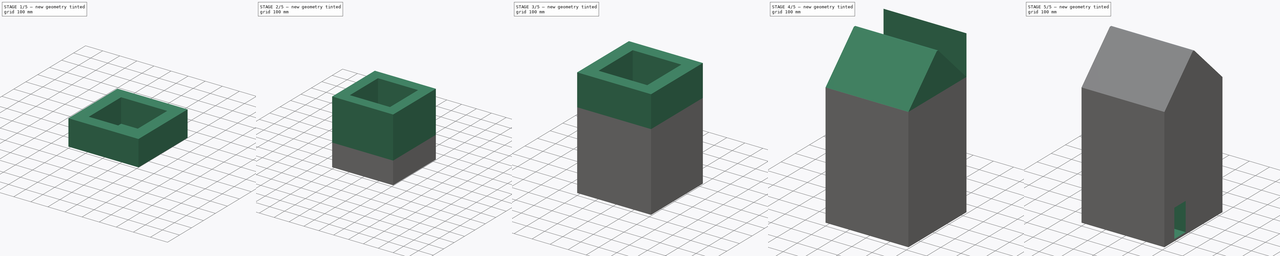
[diagram: build sequence overview — one tinted view per stage of 5, left to right]
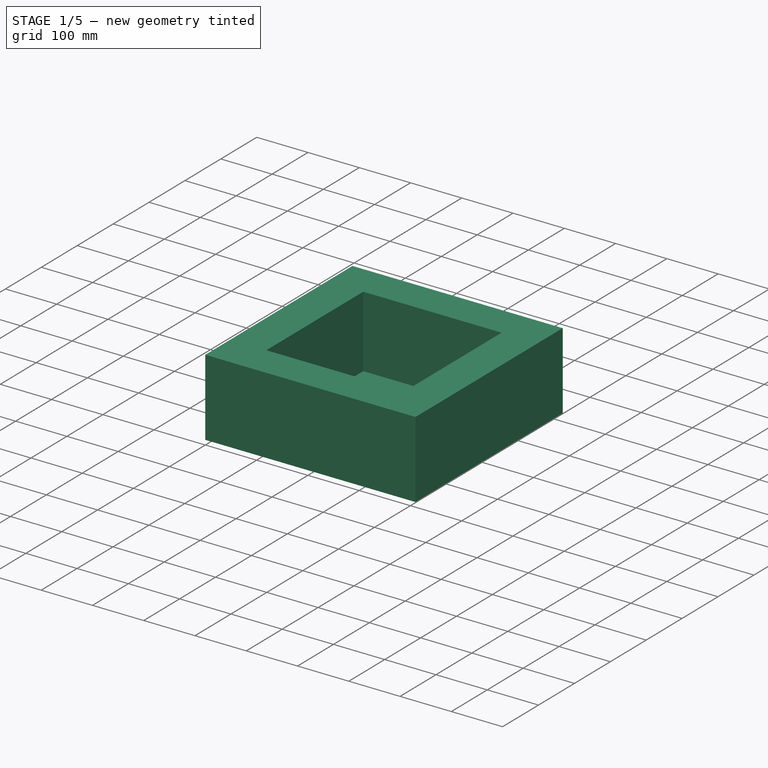
[diagram: stage 1 of 5 — iso view after this stage's code; geometry added in this stage tinted green]
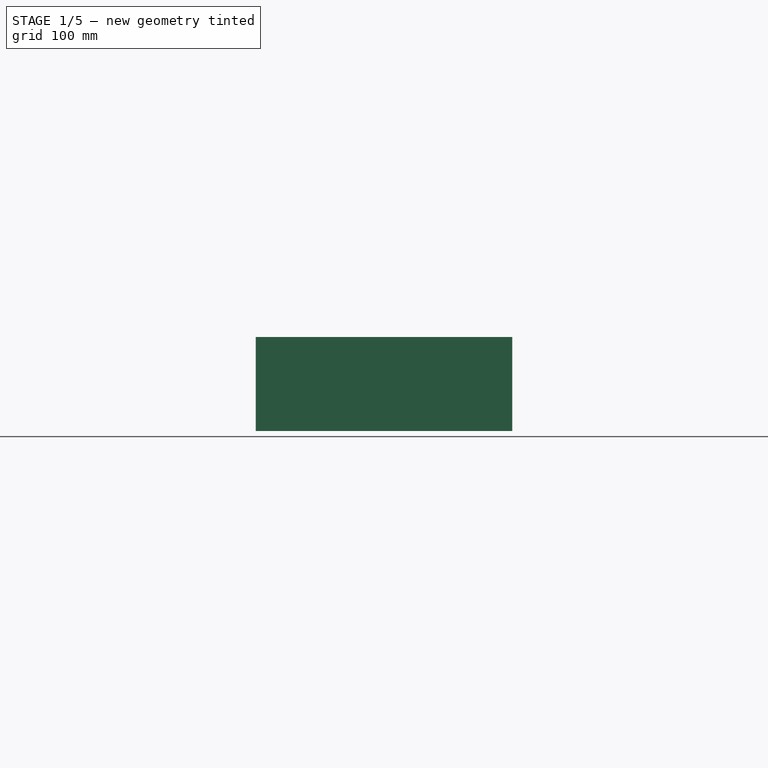
[diagram: stage 1 of 5 — front view after this stage's code; geometry added in this stage tinted green]
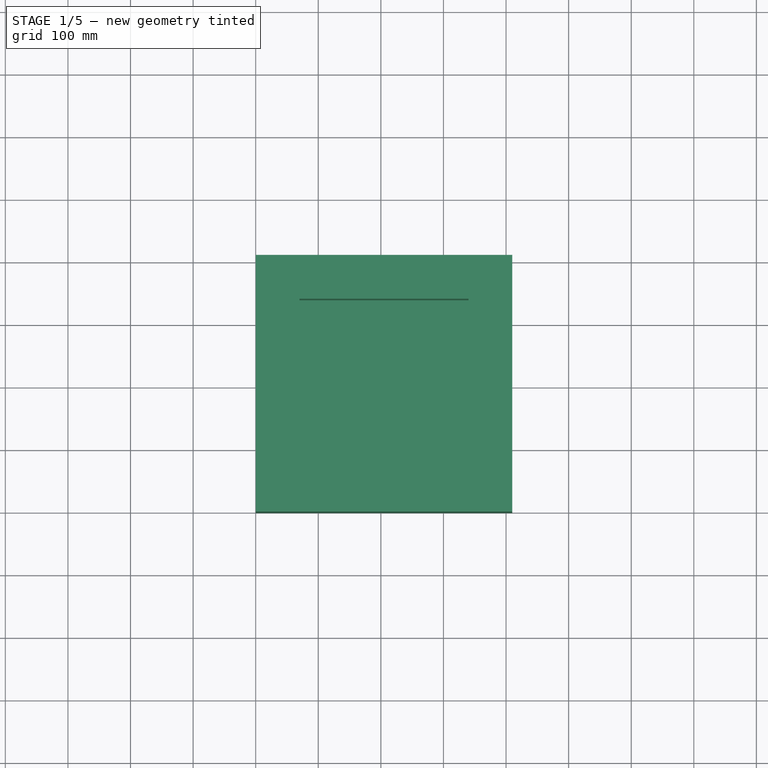
[diagram: stage 1 of 5 — top view after this stage's code; geometry added in this stage tinted green]
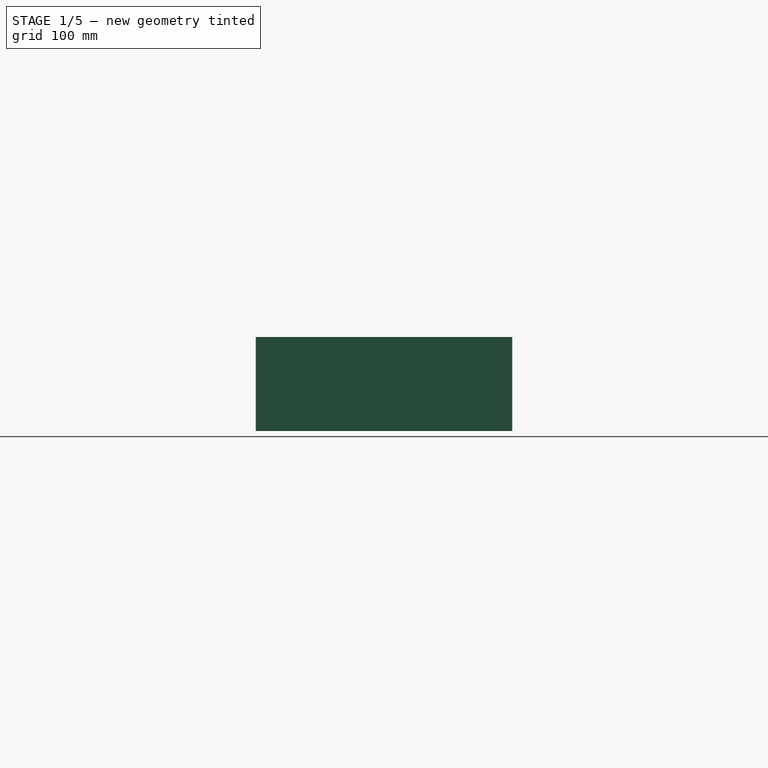
[diagram: stage 1 of 5 — right view after this stage's code; geometry added in this stage tinted green]
FCSTD DOCUMENT  (FreeCAD 0.21R33668 +26 (Git))
Label: projeto casa
License: All rights reserved
LicenseURL: https://en.wikipedia.org/wiki/All_rights_reserved
objects: Sketcher::SketchObject×16, PartDesign::Pad×11, PartDesign::Pocket×6, PartDesign::Body×1
note: 51 computed .brp shape members not serialized (recipe doc carries the construction recipe); baked Part::Feature solids carry a one-line shape summary decoded from their .brp

FEATURE [Sketcher::SketchObject] Sketch
  FullyConstrained = true
  MapMode = 5
  Support = -> [XY_Plane]
  sketch-geometry (4):
    g0: LineSegment StartX=0 StartY=0 StartZ=0 EndX=410 EndY=0 EndZ=0
    g1: LineSegment StartX=410 StartY=0 StartZ=0 EndX=410 EndY=410 EndZ=0
    g2: LineSegment StartX=410 StartY=410 StartZ=0 EndX=0 EndY=410 EndZ=0
    g3: LineSegment StartX=0 StartY=410 StartZ=0 EndX=0 EndY=0 EndZ=0
  constraints (11):
    c: Coincident(g0,g1)
    c: Coincident(g1,g2)
    c: Coincident(g2,g3)
    c: Coincident(g3,g0)
    c: Horizontal(g0)
    c: Horizontal(g2)
    c: Vertical(g1)
    c: Vertical(g3)
    c: Coincident(g0,g-1)
    c: DistanceX(g2,g1) = 410
    c: DistanceY(g0,g1) = 410
FEATURE [PartDesign::Pad] Pad
  Direction = (0,0,1)
  Length = 10
  Length2 = 10
  Profile = -> Sketch
  ReferenceAxis = -> Sketch [N_Axis]
  Type = 0
FEATURE [Sketcher::SketchObject] Sketch001
  FullyConstrained = true
  MapMode = 5
  Placement = pos=(0,0,10) rot=(0,0,1;0rad)
  Support = -> [Pad]
  sketch-geometry (8):
    g0: LineSegment StartX=0 StartY=0 StartZ=0 EndX=410 EndY=0 EndZ=0
    g1: LineSegment StartX=410 StartY=0 StartZ=0 EndX=410 EndY=410 EndZ=0
    g2: LineSegment StartX=410 StartY=410 StartZ=0 EndX=0 EndY=410 EndZ=0
    g3: LineSegment StartX=0 StartY=410 StartZ=0 EndX=0 EndY=0 EndZ=0
    g4: LineSegment StartX=70 StartY=340 StartZ=0 EndX=340 EndY=340 EndZ=0
    g5: LineSegment StartX=340 StartY=340 StartZ=0 EndX=340 EndY=70 EndZ=0
    g6: LineSegment StartX=340 StartY=70 StartZ=0 EndX=70 EndY=70 EndZ=0
    g7: LineSegment StartX=70 StartY=70 StartZ=0 EndX=70 EndY=340 EndZ=0
  constraints (23):
    c: Coincident(g0,g1)
    c: Coincident(g1,g2)
    c: Coincident(g2,g3)
    c: Coincident(g3,g0)
    c: Horizontal(g0)
    c: Horizontal(g2)
    c: Vertical(g1)
    c: Vertical(g3)
    c: Coincident(g0,g-1)
    c: DistanceX(g2,g1) = 410
    c: DistanceY(g0,g1) = 410
    c: Coincident(g4,g5)
    c: Coincident(g5,g6)
    c: Coincident(g6,g7)
    c: Coincident(g7,g4)
    c: Horizontal(g4)
    c: Horizontal(g6)
    c: Vertical(g5)
    c: Vertical(g7)
    c: DistanceX(g4,g1) = 70
    c: DistanceX(g0,g6) = 70
    c: DistanceY(g4,g2) = 70
    c: DistanceY(g0,g5) = 70
FEATURE [PartDesign::Pad] Pad001
  BaseFeature = -> Pad
  Direction = (0,0,1)
  Length = 70
  Length2 = 10
  Profile = -> Sketch001
  ReferenceAxis = -> Sketch001 [N_Axis]
  Type = 0
FEATURE [Sketcher::SketchObject] Sketch002
  FullyConstrained = true
  MapMode = 5
  Placement = pos=(0,0,80) rot=(0,0,1;0rad)
  Support = -> [Pad001]
  sketch-geometry (8):
    g0: LineSegment StartX=0 StartY=0 StartZ=0 EndX=410 EndY=0 EndZ=0
    g1: LineSegment StartX=410 StartY=0 StartZ=0 EndX=410 EndY=410 EndZ=0
    g2: LineSegment StartX=410 StartY=410 StartZ=0 EndX=0 EndY=410 EndZ=0
    g3: LineSegment StartX=0 StartY=410 StartZ=0 EndX=0 EndY=0 EndZ=0
    g4: LineSegment StartX=70 StartY=340 StartZ=0 EndX=340 EndY=340 EndZ=0
    g5: LineSegment StartX=340 StartY=340 StartZ=0 EndX=340 EndY=70 EndZ=0
    g6: LineSegment StartX=340 StartY=70 StartZ=0 EndX=70 EndY=70 EndZ=0
    g7: LineSegment StartX=70 StartY=70 StartZ=0 EndX=70 EndY=340 EndZ=0
  constraints (23):
    c: Coincident(g0,g1)
    c: Coincident(g1,g2)
    c: Coincident(g2,g3)
    c: Coincident(g3,g0)
    c: Horizontal(g0)
    c: Horizontal(g2)
    c: Vertical(g1)
    c: Vertical(g3)
    c: Coincident(g0,g-1)
    c: DistanceX(g2,g1) = 410
    c: DistanceY(g0,g1) = 410
    c: Coincident(g4,g5)
    c: Coincident(g5,g6)
    c: Coincident(g6,g7)
    c: Coincident(g7,g4)
    c: Horizontal(g4)
    c: Horizontal(g6)
    c: Vertical(g5)
    c: Vertical(g7)
    c: DistanceX(g4,g1) = 70
    c: DistanceX(g0,g6) = 70
    c: DistanceY(g4,g2) = 70
    c: DistanceY(g0,g5) = 70
FEATURE [PartDesign::Pad] Pad002
  BaseFeature = -> Pad001
  Direction = (0,0,1)
  Length = 70
  Length2 = 10
  Profile = -> Sketch002
  ReferenceAxis = -> Sketch002 [N_Axis]
  Type = 0
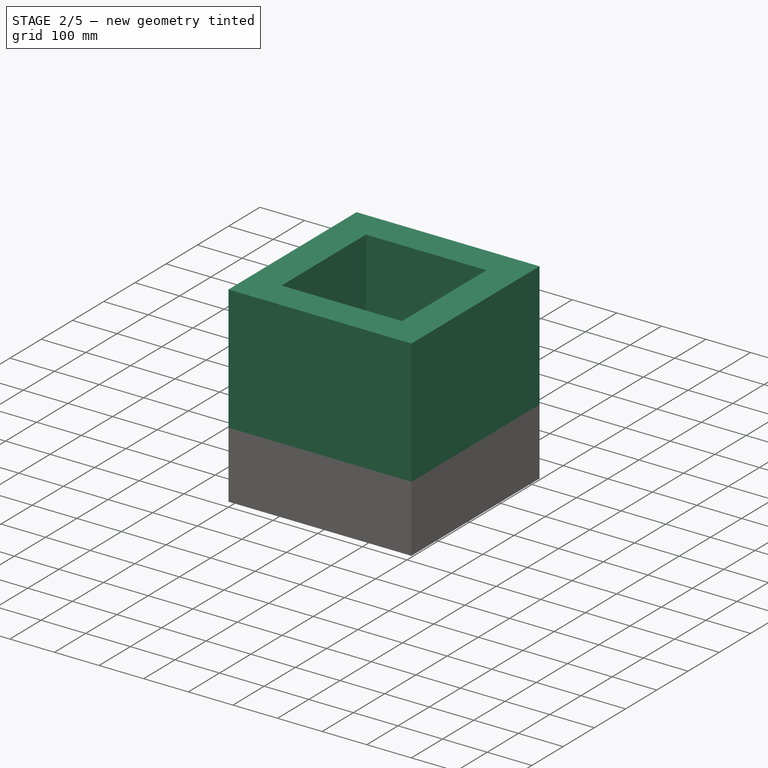
[diagram: stage 2 of 5 — iso view after this stage's code; geometry added in this stage tinted green]
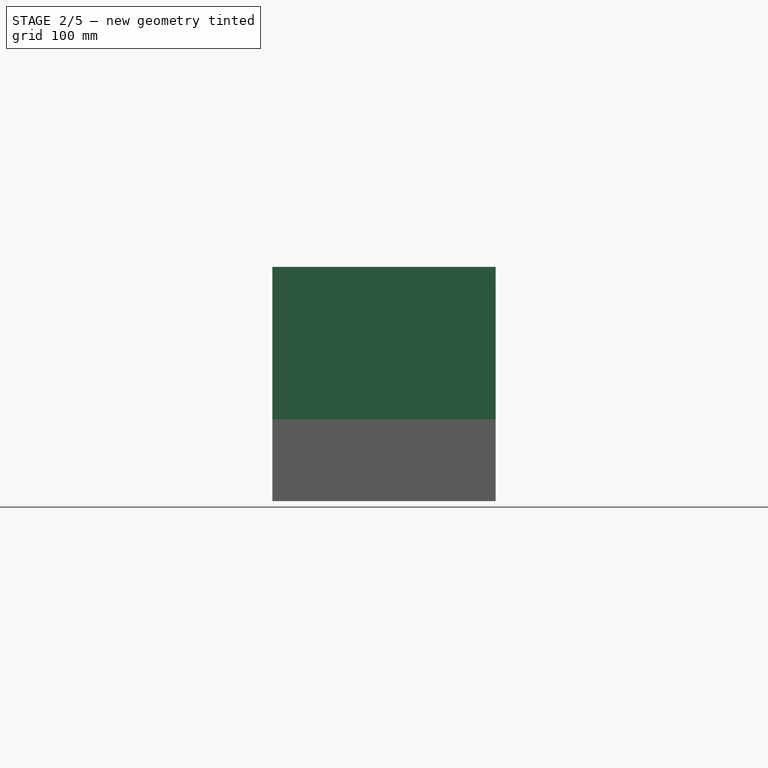
[diagram: stage 2 of 5 — front view after this stage's code; geometry added in this stage tinted green]
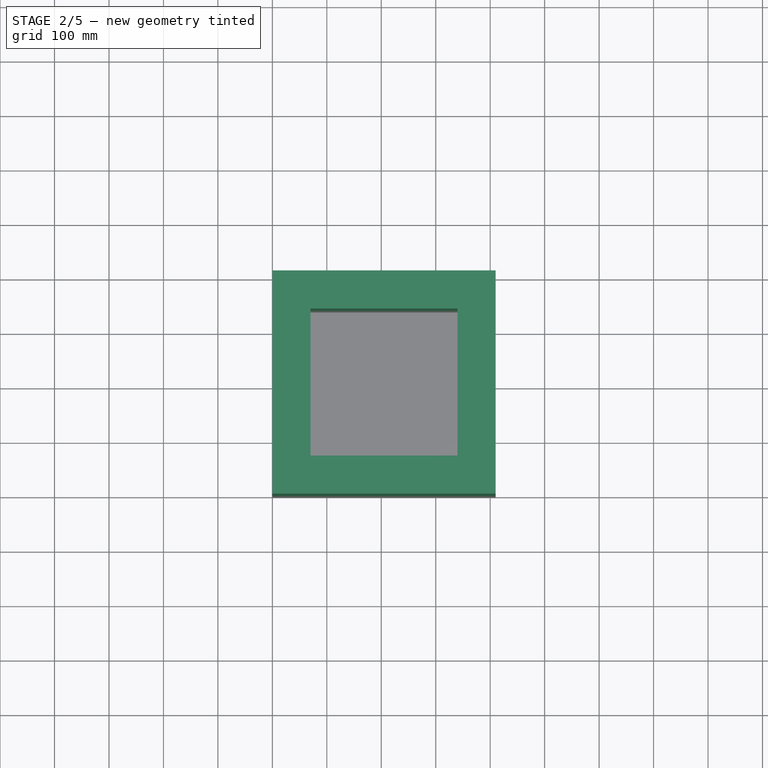
[diagram: stage 2 of 5 — top view after this stage's code; geometry added in this stage tinted green]
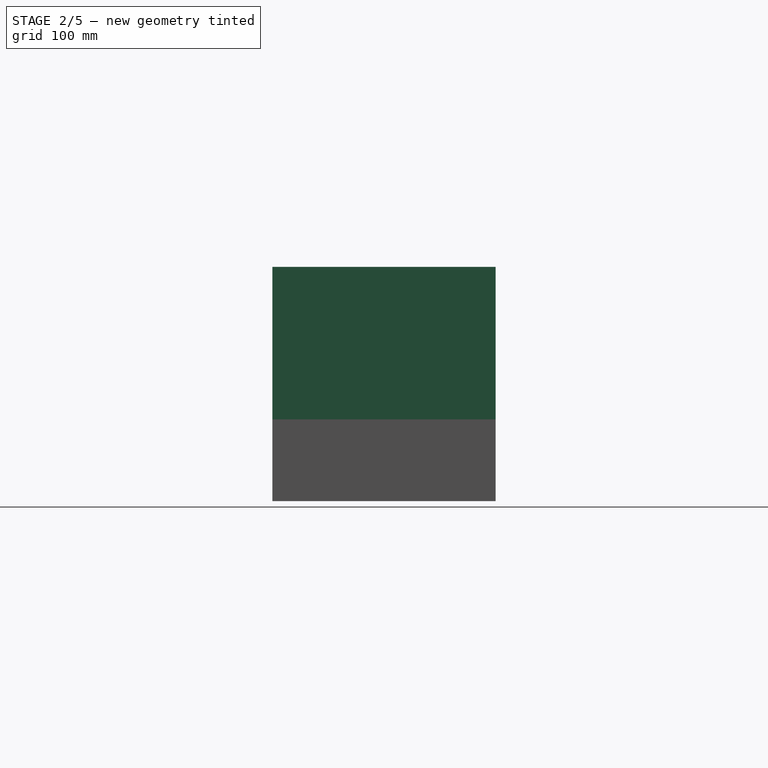
[diagram: stage 2 of 5 — right view after this stage's code; geometry added in this stage tinted green]
FEATURE [Sketcher::SketchObject] Sketch003
  FullyConstrained = true
  MapMode = 5
  Placement = pos=(0,0,150) rot=(0,0,1;0rad)
  Support = -> [Pad002]
  sketch-geometry (8):
    g0: LineSegment StartX=0 StartY=0 StartZ=0 EndX=410 EndY=0 EndZ=0
    g1: LineSegment StartX=410 StartY=0 StartZ=0 EndX=410 EndY=410 EndZ=0
    g2: LineSegment StartX=410 StartY=410 StartZ=0 EndX=0 EndY=410 EndZ=0
    g3: LineSegment StartX=0 StartY=410 StartZ=0 EndX=0 EndY=0 EndZ=0
    g4: LineSegment StartX=70 StartY=340 StartZ=0 EndX=340 EndY=340 EndZ=0
    g5: LineSegment StartX=340 StartY=340 StartZ=0 EndX=340 EndY=70 EndZ=0
    g6: LineSegment StartX=340 StartY=70 StartZ=0 EndX=70 EndY=70 EndZ=0
    g7: LineSegment StartX=70 StartY=70 StartZ=0 EndX=70 EndY=340 EndZ=0
  constraints (23):
    c: Coincident(g0,g1)
    c: Coincident(g1,g2)
    c: Coincident(g2,g3)
    c: Coincident(g3,g0)
    c: Horizontal(g0)
    c: Horizontal(g2)
    c: Vertical(g1)
    c: Vertical(g3)
    c: Coincident(g0,g-1)
    c: DistanceX(g2,g1) = 410
    c: DistanceY(g0,g1) = 410
    c: Coincident(g4,g5)
    c: Coincident(g5,g6)
    c: Coincident(g6,g7)
    c: Coincident(g7,g4)
    c: Horizontal(g4)
    c: Horizontal(g6)
    c: Vertical(g5)
    c: Vertical(g7)
    c: DistanceX(g4,g1) = 70
    c: DistanceX(g0,g6) = 70
    c: DistanceY(g4,g2) = 70
    c: DistanceY(g0,g5) = 70
FEATURE [PartDesign::Pad] Pad003
  BaseFeature = -> Pad002
  Direction = (0,0,1)
  Length = 70
  Length2 = 10
  Profile = -> Sketch003
  ReferenceAxis = -> Sketch003 [N_Axis]
  Type = 0
FEATURE [Sketcher::SketchObject] Sketch004
  FullyConstrained = true
  MapMode = 5
  Placement = pos=(0,0,220) rot=(0,0,1;0rad)
  Support = -> [Pad003]
  sketch-geometry (8):
    g0: LineSegment StartX=0 StartY=0 StartZ=0 EndX=410 EndY=0 EndZ=0
    g1: LineSegment StartX=410 StartY=0 StartZ=0 EndX=410 EndY=410 EndZ=0
    g2: LineSegment StartX=410 StartY=410 StartZ=0 EndX=0 EndY=410 EndZ=0
    g3: LineSegment StartX=0 StartY=410 StartZ=0 EndX=0 EndY=0 EndZ=0
    g4: LineSegment StartX=70 StartY=340 StartZ=0 EndX=340 EndY=340 EndZ=0
    g5: LineSegment StartX=340 StartY=340 StartZ=0 EndX=340 EndY=70 EndZ=0
    g6: LineSegment StartX=340 StartY=70 StartZ=0 EndX=70 EndY=70 EndZ=0
    g7: LineSegment StartX=70 StartY=70 StartZ=0 EndX=70 EndY=340 EndZ=0
  constraints (23):
    c: Coincident(g0,g1)
    c: Coincident(g1,g2)
    c: Coincident(g2,g3)
    c: Coincident(g3,g0)
    c: Horizontal(g0)
    c: Horizontal(g2)
    c: Vertical(g1)
    c: Vertical(g3)
    c: Coincident(g0,g-1)
    c: DistanceX(g2,g1) = 410
    c: DistanceY(g0,g1) = 410
    c: Coincident(g4,g5)
    c: Coincident(g5,g6)
    c: Coincident(g6,g7)
    c: Coincident(g7,g4)
    c: Horizontal(g4)
    c: Horizontal(g6)
    c: Vertical(g5)
    c: Vertical(g7)
    c: DistanceX(g4,g1) = 70
    c: DistanceX(g0,g6) = 70
    c: DistanceY(g4,g2) = 70
    c: DistanceY(g0,g5) = 70
FEATURE [PartDesign::Pad] Pad004
  BaseFeature = -> Pad003
  Direction = (0,0,1)
  Length = 70
  Length2 = 10
  Profile = -> Sketch004
  ReferenceAxis = -> Sketch004 [N_Axis]
  Type = 0
FEATURE [Sketcher::SketchObject] Sketch005
  FullyConstrained = true
  MapMode = 5
  Placement = pos=(0,0,290) rot=(0,0,1;0rad)
  Support = -> [Pad004]
  sketch-geometry (8):
    g0: LineSegment StartX=0 StartY=0 StartZ=0 EndX=410 EndY=0 EndZ=0
    g1: LineSegment StartX=410 StartY=0 StartZ=0 EndX=410 EndY=410 EndZ=0
    g2: LineSegment StartX=410 StartY=410 StartZ=0 EndX=0 EndY=410 EndZ=0
    g3: LineSegment StartX=0 StartY=410 StartZ=0 EndX=0 EndY=0 EndZ=0
    g4: LineSegment StartX=70 StartY=340 StartZ=0 EndX=340 EndY=340 EndZ=0
    g5: LineSegment StartX=340 StartY=340 StartZ=0 EndX=340 EndY=70 EndZ=0
    g6: LineSegment StartX=340 StartY=70 StartZ=0 EndX=70 EndY=70 EndZ=0
    g7: LineSegment StartX=70 StartY=70 StartZ=0 EndX=70 EndY=340 EndZ=0
  constraints (23):
    c: Coincident(g0,g1)
    c: Coincident(g1,g2)
    c: Coincident(g2,g3)
    c: Coincident(g3,g0)
    c: Horizontal(g0)
    c: Horizontal(g2)
    c: Vertical(g1)
    c: Vertical(g3)
    c: Coincident(g0,g-1)
    c: DistanceX(g2,g1) = 410
    c: DistanceY(g0,g1) = 410
    c: Coincident(g4,g5)
    c: Coincident(g5,g6)
    c: Coincident(g6,g7)
    c: Coincident(g7,g4)
    c: Horizontal(g4)
    c: Horizontal(g6)
    c: Vertical(g5)
    c: Vertical(g7)
    c: DistanceX(g2,g4) = 70
    c: DistanceX(g5,g0) = 70
    c: DistanceY(g0,g6) = 70
    c: DistanceY(g4,g1) = 70
FEATURE [PartDesign::Pad] Pad005
  BaseFeature = -> Pad004
  Direction = (0,0,1)
  Length = 70
  Length2 = 10
  Profile = -> Sketch005
  ReferenceAxis = -> Sketch005 [N_Axis]
  Type = 0
FEATURE [Sketcher::SketchObject] Sketch006
  FullyConstrained = true
  MapMode = 5
  Placement = pos=(0,0,360) rot=(0,0,1;0rad)
  Support = -> [Pad005]
  sketch-geometry (8):
    g0: LineSegment StartX=0 StartY=0 StartZ=0 EndX=410 EndY=0 EndZ=0
    g1: LineSegment StartX=410 StartY=0 StartZ=0 EndX=410 EndY=410 EndZ=0
    g2: LineSegment StartX=410 StartY=410 StartZ=0 EndX=0 EndY=410 EndZ=0
    g3: LineSegment StartX=0 StartY=410 StartZ=0 EndX=0 EndY=0 EndZ=0
    g4: LineSegment StartX=70 StartY=340 StartZ=0 EndX=340 EndY=340 EndZ=0
    g5: LineSegment StartX=340 StartY=340 StartZ=0 EndX=340 EndY=70 EndZ=0
    g6: LineSegment StartX=340 StartY=70 StartZ=0 EndX=70 EndY=70 EndZ=0
    g7: LineSegment StartX=70 StartY=70 StartZ=0 EndX=70 EndY=340 EndZ=0
  constraints (23):
    c: Coincident(g0,g1)
    c: Coincident(g1,g2)
    c: Coincident(g2,g3)
    c: Coincident(g3,g0)
    c: Horizontal(g0)
    c: Horizontal(g2)
    c: Vertical(g1)
    c: Vertical(g3)
    c: Coincident(g0,g-1)
    c: DistanceX(g2,g1) = 410
    c: DistanceY(g0,g1) = 410
    c: Coincident(g4,g5)
    c: Coincident(g5,g6)
    c: Coincident(g6,g7)
    c: Coincident(g7,g4)
    c: Horizontal(g4)
    c: Horizontal(g6)
    c: Vertical(g5)
    c: Vertical(g7)
    c: DistanceX(g4,g1) = 70
    c: DistanceX(g0,g6) = 70
    c: DistanceY(g0,g5) = 70
    c: DistanceY(g4,g2) = 70
FEATURE [PartDesign::Pad] Pad006
  BaseFeature = -> Pad005
  Direction = (0,0,1)
  Length = 70
  Length2 = 10
  Profile = -> Sketch006
  ReferenceAxis = -> Sketch006 [N_Axis]
  Type = 0
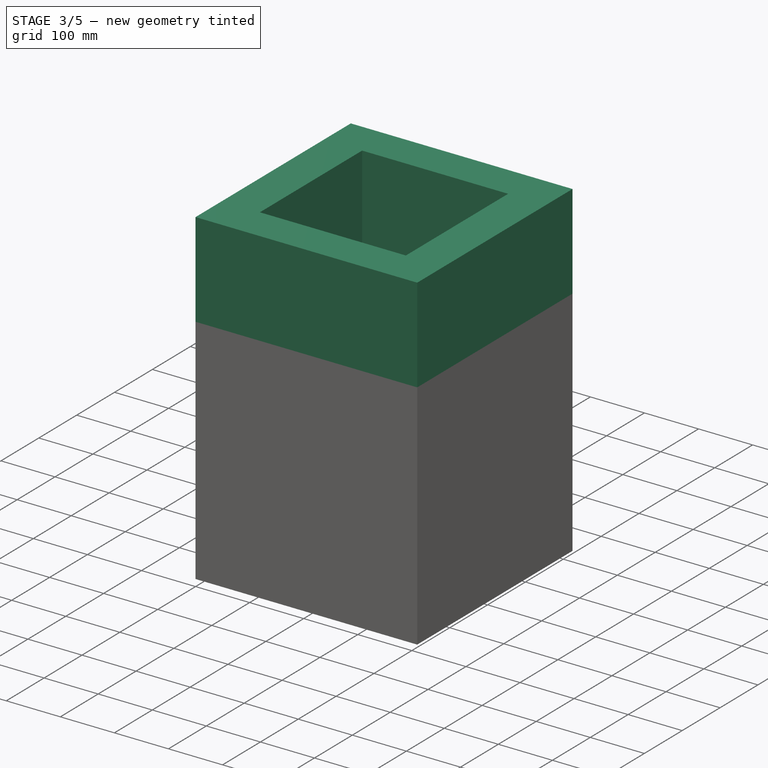
[diagram: stage 3 of 5 — iso view after this stage's code; geometry added in this stage tinted green]
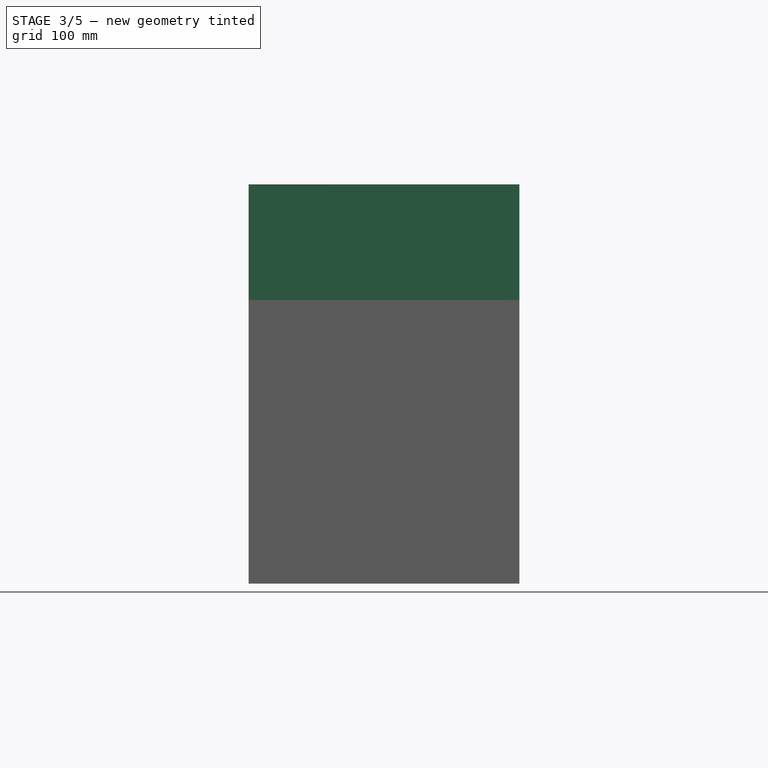
[diagram: stage 3 of 5 — front view after this stage's code; geometry added in this stage tinted green]
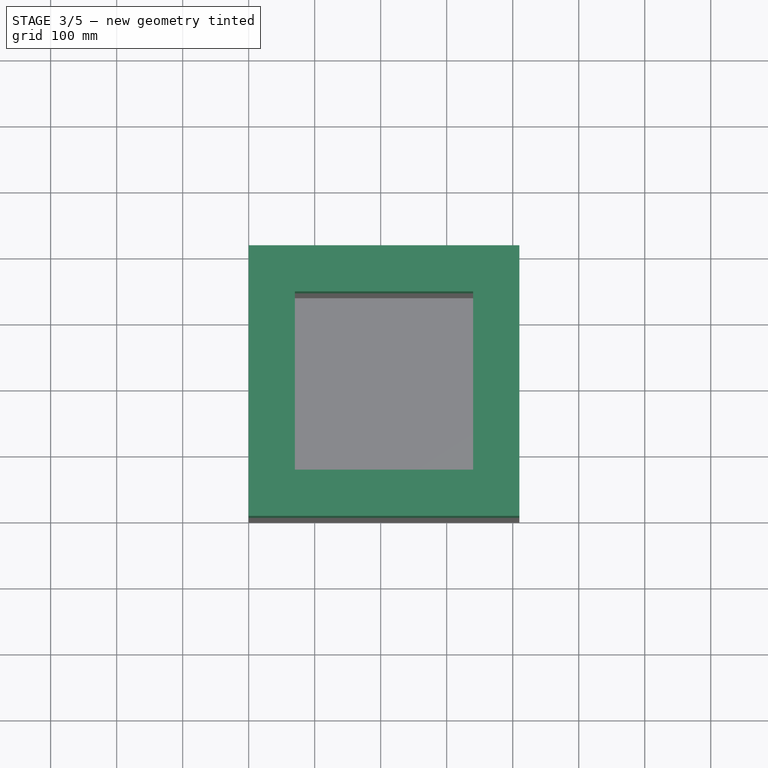
[diagram: stage 3 of 5 — top view after this stage's code; geometry added in this stage tinted green]
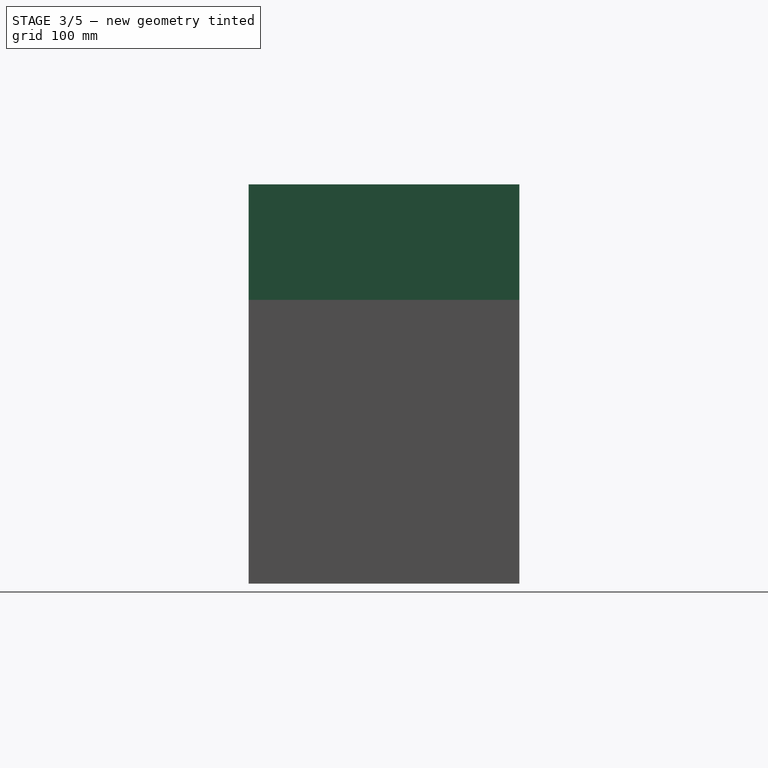
[diagram: stage 3 of 5 — right view after this stage's code; geometry added in this stage tinted green]
FEATURE [Sketcher::SketchObject] Sketch007
  FullyConstrained = true
  MapMode = 5
  Placement = pos=(0,0,430) rot=(0,0,1;0rad)
  Support = -> [Pad006]
  sketch-geometry (8):
    g0: LineSegment StartX=0 StartY=0 StartZ=0 EndX=410 EndY=0 EndZ=0
    g1: LineSegment StartX=410 StartY=0 StartZ=0 EndX=410 EndY=410 EndZ=0
    g2: LineSegment StartX=410 StartY=410 StartZ=0 EndX=0 EndY=410 EndZ=0
    g3: LineSegment StartX=0 StartY=410 StartZ=0 EndX=0 EndY=0 EndZ=0
    g4: LineSegment StartX=70 StartY=340 StartZ=0 EndX=340 EndY=340 EndZ=0
    g5: LineSegment StartX=340 StartY=340 StartZ=0 EndX=340 EndY=70 EndZ=0
    g6: LineSegment StartX=340 StartY=70 StartZ=0 EndX=70 EndY=70 EndZ=0
    g7: LineSegment StartX=70 StartY=70 StartZ=0 EndX=70 EndY=340 EndZ=0
  constraints (23):
    c: Coincident(g0,g1)
    c: Coincident(g1,g2)
    c: Coincident(g2,g3)
    c: Coincident(g3,g0)
    c: Horizontal(g0)
    c: Horizontal(g2)
    c: Vertical(g1)
    c: Vertical(g3)
    c: Coincident(g0,g-1)
    c: DistanceX(g2,g1) = 410
    c: DistanceY(g0,g1) = 410
    c: Coincident(g4,g5)
    c: Coincident(g5,g6)
    c: Coincident(g6,g7)
    c: Coincident(g7,g4)
    c: Horizontal(g4)
    c: Horizontal(g6)
    c: Vertical(g5)
    c: Vertical(g7)
    c: DistanceX(g4,g1) = 70
    c: DistanceX(g0,g6) = 70
    c: DistanceY(g0,g5) = 70
    c: DistanceY(g4,g2) = 70
FEATURE [PartDesign::Pad] Pad007
  BaseFeature = -> Pad006
  Direction = (0,0,1)
  Length = 70
  Length2 = 10
  Profile = -> Sketch007
  ReferenceAxis = -> Sketch007 [N_Axis]
  Type = 0
FEATURE [Sketcher::SketchObject] Sketch008
  FullyConstrained = true
  MapMode = 5
  Placement = pos=(0,0,500) rot=(0,0,1;0rad)
  Support = -> [Pad007]
  sketch-geometry (8):
    g0: LineSegment StartX=0 StartY=0 StartZ=0 EndX=410 EndY=0 EndZ=0
    g1: LineSegment StartX=410 StartY=0 StartZ=0 EndX=410 EndY=410 EndZ=0
    g2: LineSegment StartX=410 StartY=410 StartZ=0 EndX=0 EndY=410 EndZ=0
    g3: LineSegment StartX=0 StartY=410 StartZ=0 EndX=0 EndY=0 EndZ=0
    g4: LineSegment StartX=70 StartY=340 StartZ=0 EndX=340 EndY=340 EndZ=0
    g5: LineSegment StartX=340 StartY=340 StartZ=0 EndX=340 EndY=70 EndZ=0
    g6: LineSegment StartX=340 StartY=70 StartZ=0 EndX=70 EndY=70 EndZ=0
    g7: LineSegment StartX=70 StartY=70 StartZ=0 EndX=70 EndY=340 EndZ=0
  constraints (23):
    c: Coincident(g0,g1)
    c: Coincident(g1,g2)
    c: Coincident(g2,g3)
    c: Coincident(g3,g0)
    c: Horizontal(g0)
    c: Horizontal(g2)
    c: Vertical(g1)
    c: Vertical(g3)
    c: Coincident(g0,g-1)
    c: DistanceX(g2,g1) = 410
    c: DistanceY(g0,g1) = 410
    c: Coincident(g4,g5)
    c: Coincident(g5,g6)
    c: Coincident(g6,g7)
    c: Coincident(g7,g4)
    c: Horizontal(g4)
    c: Horizontal(g6)
    c: Vertical(g5)
    c: Vertical(g7)
    c: DistanceX(g2,g4) = 70
    c: DistanceX(g5,g0) = 70
    c: DistanceY(g4,g1) = 70
    c: DistanceY(g0,g6) = 70
FEATURE [PartDesign::Pad] Pad008
  BaseFeature = -> Pad007
  Direction = (0,0,1)
  Length = 70
  Length2 = 10
  Profile = -> Sketch008
  ReferenceAxis = -> Sketch008 [N_Axis]
  Type = 0
FEATURE [Sketcher::SketchObject] Sketch009
  FullyConstrained = true
  MapMode = 5
  Placement = pos=(0,0,570) rot=(0,0,1;0rad)
  Support = -> [Pad008]
  sketch-geometry (8):
    g0: LineSegment StartX=0 StartY=0 StartZ=0 EndX=410 EndY=0 EndZ=0
    g1: LineSegment StartX=410 StartY=0 StartZ=0 EndX=410 EndY=410 EndZ=0
    g2: LineSegment StartX=410 StartY=410 StartZ=0 EndX=0 EndY=410 EndZ=0
    g3: LineSegment StartX=0 StartY=410 StartZ=0 EndX=0 EndY=0 EndZ=0
    g4: LineSegment StartX=70 StartY=340 StartZ=0 EndX=340 EndY=340 EndZ=0
    g5: LineSegment StartX=340 StartY=340 StartZ=0 EndX=340 EndY=70 EndZ=0
    g6: LineSegment StartX=340 StartY=70 StartZ=0 EndX=70 EndY=70 EndZ=0
    g7: LineSegment StartX=70 StartY=70 StartZ=0 EndX=70 EndY=340 EndZ=0
  constraints (23):
    c: Coincident(g0,g1)
    c: Coincident(g1,g2)
    c: Coincident(g2,g3)
    c: Coincident(g3,g0)
    c: Horizontal(g0)
    c: Horizontal(g2)
    c: Vertical(g1)
    c: Vertical(g3)
    c: Coincident(g0,g-1)
    c: DistanceX(g2,g1) = 410
    c: DistanceY(g0,g1) = 410
    c: Coincident(g4,g5)
    c: Coincident(g5,g6)
    c: Coincident(g6,g7)
    c: Coincident(g7,g4)
    c: Horizontal(g4)
    c: Horizontal(g6)
    c: Vertical(g5)
    c: Vertical(g7)
    c: DistanceX(g4,g1) = 70
    c: DistanceX(g0,g6) = 70
    c: DistanceY(g0,g5) = 70
    c: DistanceY(g4,g2) = 70
FEATURE [PartDesign::Pad] Pad009
  BaseFeature = -> Pad008
  Direction = (0,0,1)
  Length = 35
  Length2 = 10
  Profile = -> Sketch009
  ReferenceAxis = -> Sketch009 [N_Axis]
  Type = 0
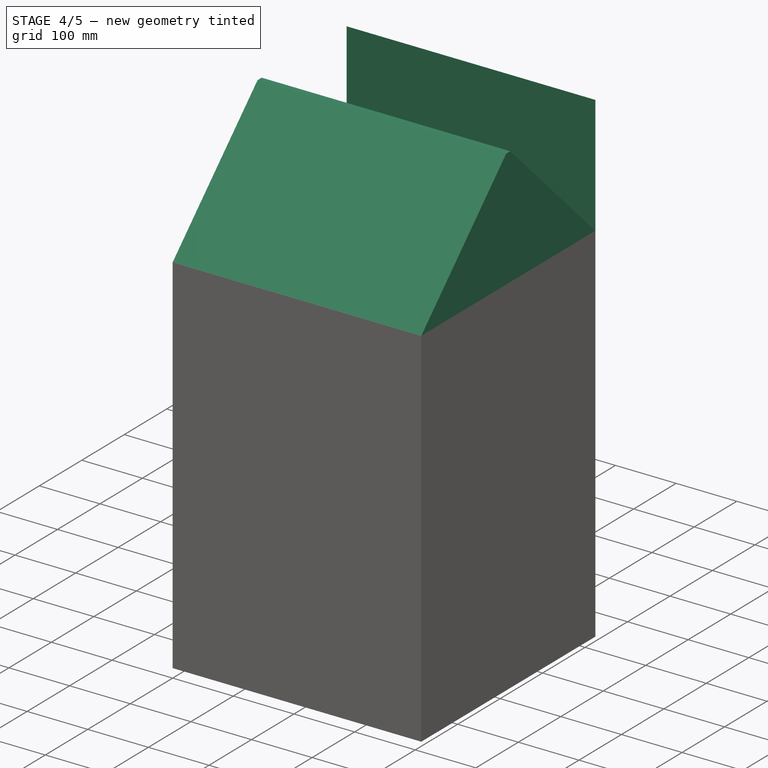
[diagram: stage 4 of 5 — iso view after this stage's code; geometry added in this stage tinted green]
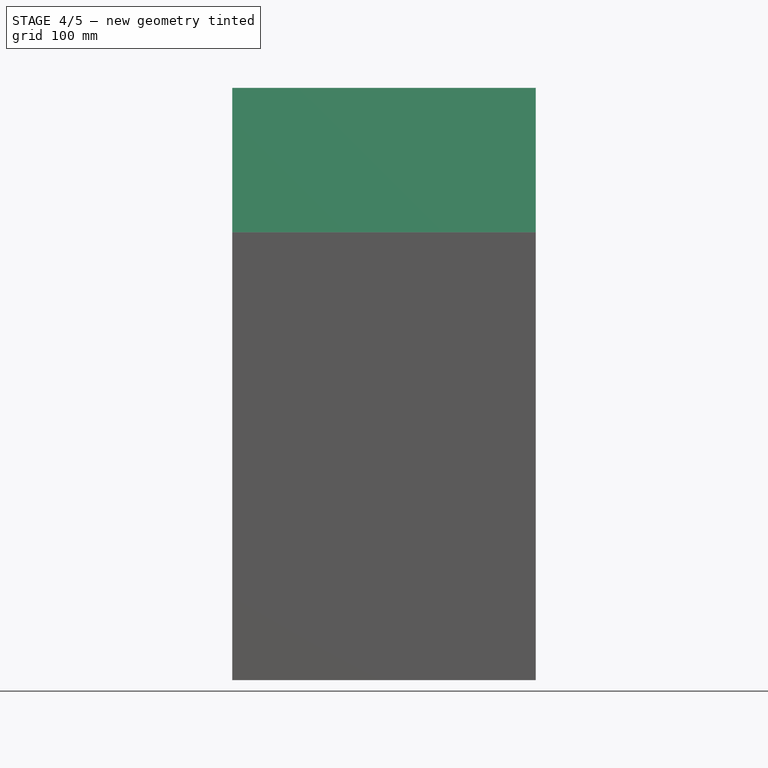
[diagram: stage 4 of 5 — front view after this stage's code; geometry added in this stage tinted green]
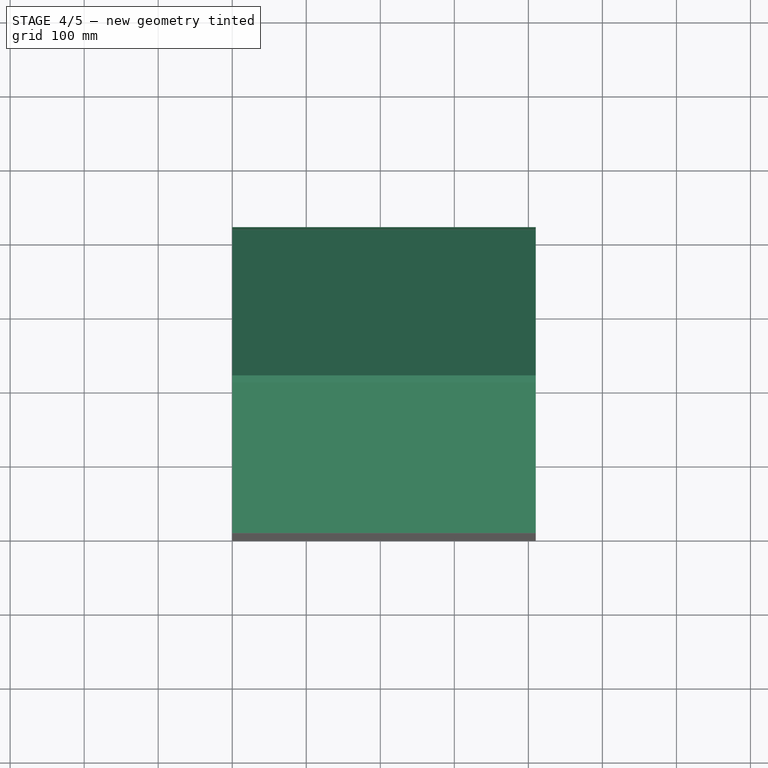
[diagram: stage 4 of 5 — top view after this stage's code; geometry added in this stage tinted green]
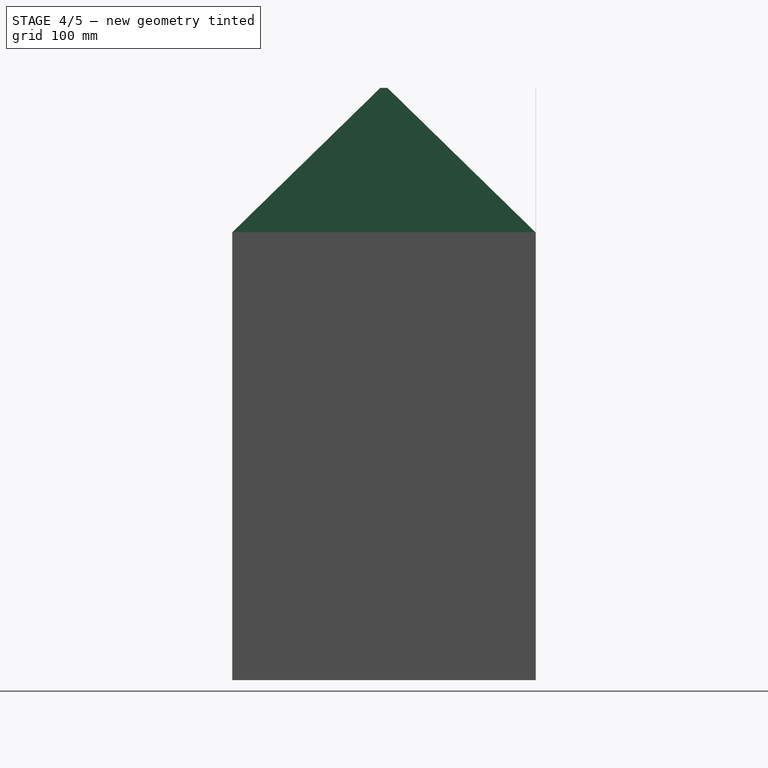
[diagram: stage 4 of 5 — right view after this stage's code; geometry added in this stage tinted green]
FEATURE [Sketcher::SketchObject] Sketch010
  FullyConstrained = true
  MapMode = 5
  Placement = pos=(0,0,605) rot=(0,0,1;0rad)
  Support = -> [Pad009]
  sketch-geometry (4):
    g0: LineSegment StartX=0 StartY=0 StartZ=0 EndX=410 EndY=0 EndZ=0
    g1: LineSegment StartX=410 StartY=0 StartZ=0 EndX=410 EndY=410 EndZ=0
    g2: LineSegment StartX=410 StartY=410 StartZ=0 EndX=0 EndY=410 EndZ=0
    g3: LineSegment StartX=0 StartY=410 StartZ=0 EndX=0 EndY=0 EndZ=0
  constraints (11):
    c: Coincident(g0,g1)
    c: Coincident(g1,g2)
    c: Coincident(g2,g3)
    c: Coincident(g3,g0)
    c: Horizontal(g0)
    c: Horizontal(g2)
    c: Vertical(g1)
    c: Vertical(g3)
    c: Coincident(g0,g-1)
    c: DistanceX(g2,g1) = 410
    c: DistanceY(g0,g1) = 410
FEATURE [PartDesign::Pad] Pad010
  BaseFeature = -> Pad009
  Direction = (0,0,1)
  Length = 200
  Length2 = 10
  Profile = -> Sketch010
  ReferenceAxis = -> Sketch010 [N_Axis]
  Type = 0
FEATURE [Sketcher::SketchObject] Sketch011
  FullyConstrained = false
  MapMode = 5
  Placement = pos=(410,0,0) rot=(0.57735,0.57735,0.57735;2.0944rad)
  Support = -> [Pad010]
  sketch-geometry (3):
    g0: LineSegment StartX=0 StartY=804.832 StartZ=0 EndX=205 EndY=804.832 EndZ=0
    g1: LineSegment StartX=0 StartY=804.832 StartZ=0 EndX=0 EndY=604.832 EndZ=0
    g2: LineSegment StartX=205 StartY=804.832 StartZ=0 EndX=0 EndY=604.832 EndZ=0
  constraints (8):
    c: Horizontal(g0)
    c: Coincident(g1,g0)
    c: PointOnObject(g1,g-2)
    c: Vertical(g1)
    c: Coincident(g2,g0)
    c: Coincident(g2,g1)
    c: DistanceY(g1,g0) = 200
    c: DistanceX(g0,g0) = 205
FEATURE [PartDesign::Pocket] Pocket
  BaseFeature = -> Pad010
  Direction = (-1,0,0)
  Length = 410
  Length2 = 5
  Profile = -> Sketch011
  ReferenceAxis = -> Sketch011 [N_Axis]
  Type = 0
FEATURE [Sketcher::SketchObject] Sketch012
  FullyConstrained = false
  MapMode = 5
  Placement = pos=(410,0,0) rot=(0.57735,0.57735,0.57735;2.0944rad)
  Support = -> [Pocket]
  sketch-geometry (6):
    g0: GeomPoint X=204.83 Y=804.707 Z=0
    g1: GeomPoint X=409.83 Y=804.707 Z=0
    g2: GeomPoint X=409.83 Y=604.707 Z=0
    g3: LineSegment StartX=204.83 StartY=804.707 StartZ=0 EndX=409.83 EndY=804.707 EndZ=0
    g4: LineSegment StartX=409.83 StartY=604.707 StartZ=0 EndX=204.83 EndY=804.707 EndZ=0
    g5: LineSegment StartX=409.83 StartY=804.707 StartZ=0 EndX=409.83 EndY=604.707 EndZ=0
  constraints (10):
    c: Coincident(g3,g0)
    c: Coincident(g3,g1)
    c: Horizontal(g3)
    c: Coincident(g4,g2)
    c: Coincident(g4,g3)
    c: Coincident(g5,g3)
    c: Coincident(g5,g4)
    c: Vertical(g5)
    c: DistanceY(g4,g3) = 200
    c: DistanceX(g3,g3) = 205
FEATURE [PartDesign::Pocket] Pocket001
  BaseFeature = -> Pocket
  Direction = (-1,0,0)
  Length = 410
  Length2 = 5
  Profile = -> Sketch012
  ReferenceAxis = -> Sketch012 [N_Axis]
  Type = 0
FEATURE [Sketcher::SketchObject] Sketch013
  FullyConstrained = true
  MapMode = 5
  Placement = pos=(0,0,805) rot=(0,0,1;0rad)
  Support = -> [Pocket001]
  sketch-geometry (4):
    g0: LineSegment StartX=0 StartY=0 StartZ=0 EndX=410 EndY=0 EndZ=0
    g1: LineSegment StartX=410 StartY=0 StartZ=0 EndX=410 EndY=410 EndZ=0
    g2: LineSegment StartX=410 StartY=410 StartZ=0 EndX=0 EndY=410 EndZ=0
    g3: LineSegment StartX=0 StartY=410 StartZ=0 EndX=0 EndY=0 EndZ=0
  constraints (11):
    c: Coincident(g0,g1)
    c: Coincident(g1,g2)
    c: Coincident(g2,g3)
    c: Coincident(g3,g0)
    c: Horizontal(g0)
    c: Horizontal(g2)
    c: Vertical(g1)
    c: Vertical(g3)
    c: Coincident(g0,g-1)
    c: DistanceX(g2,g1) = 410
    c: DistanceY(g0,g1) = 410
FEATURE [PartDesign::Pocket] Pocket002
  BaseFeature = -> Pocket001
  Direction = (0,0,-1)
  Length = 5
  Length2 = 5
  Profile = -> Sketch013
  ReferenceAxis = -> Sketch013 [N_Axis]
  Type = 0
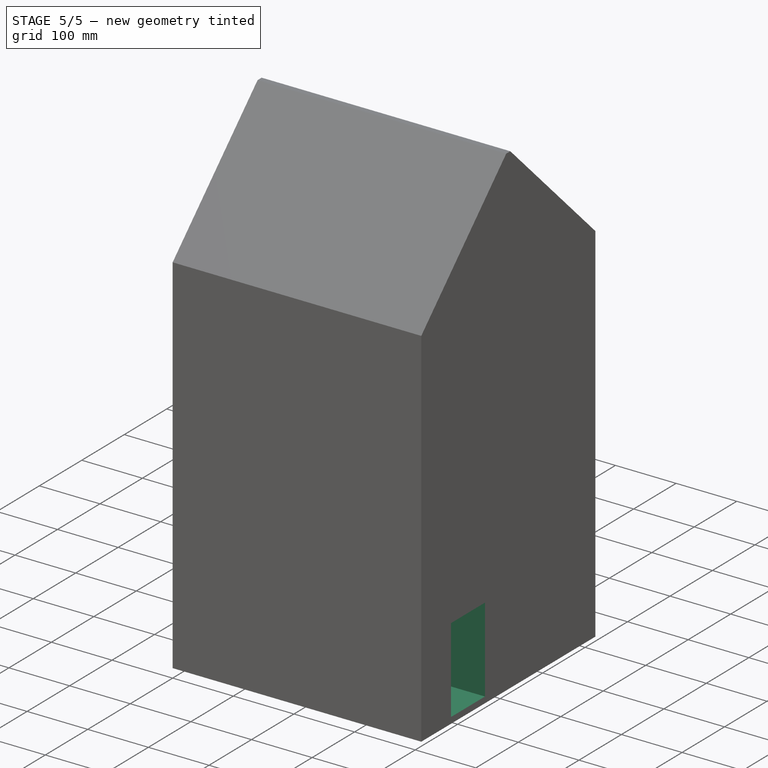
[diagram: stage 5 of 5 — iso view after this stage's code; geometry added in this stage tinted green]
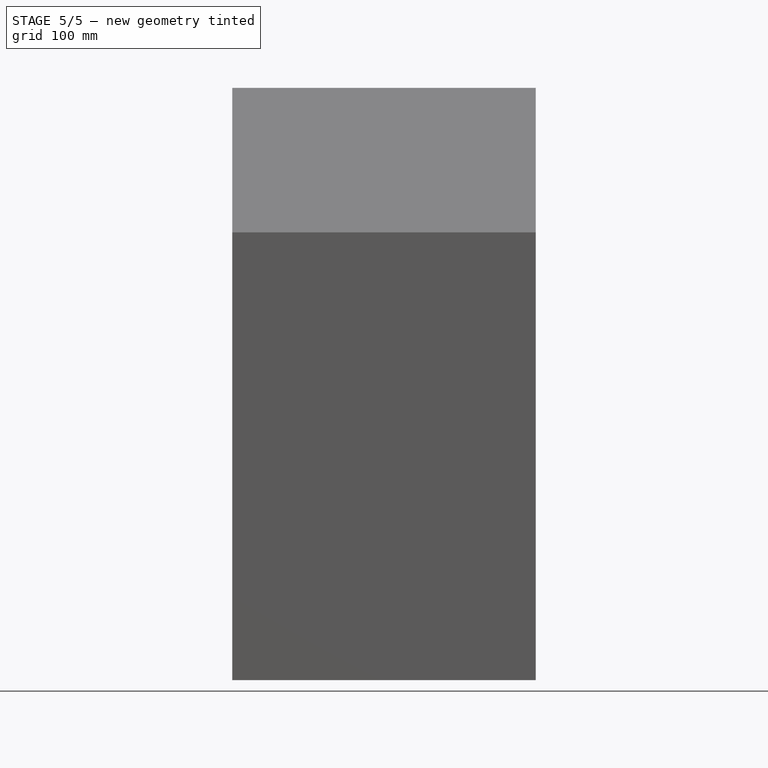
[diagram: stage 5 of 5 — front view after this stage's code; geometry added in this stage tinted green]
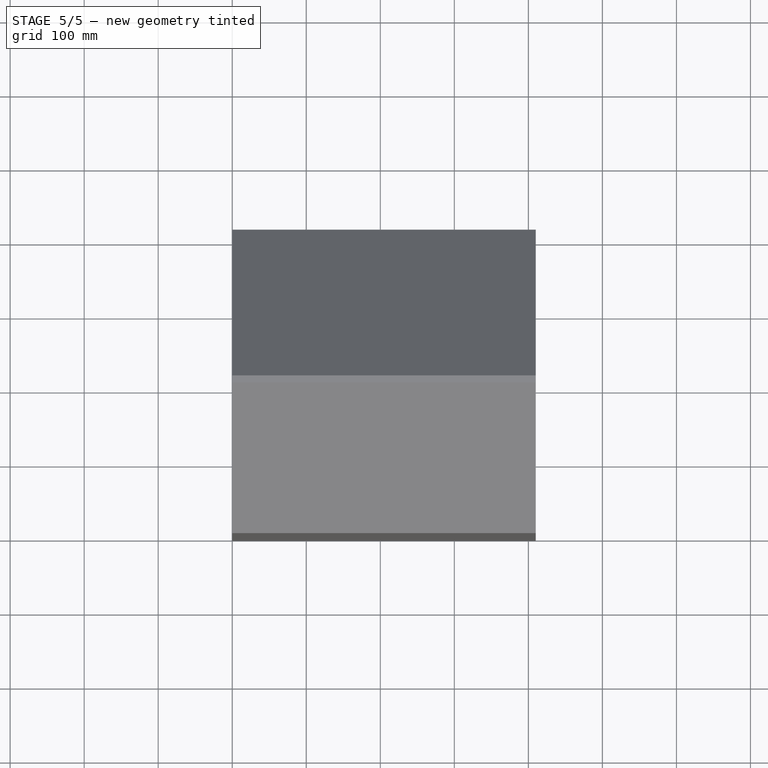
[diagram: stage 5 of 5 — top view after this stage's code; geometry added in this stage tinted green]
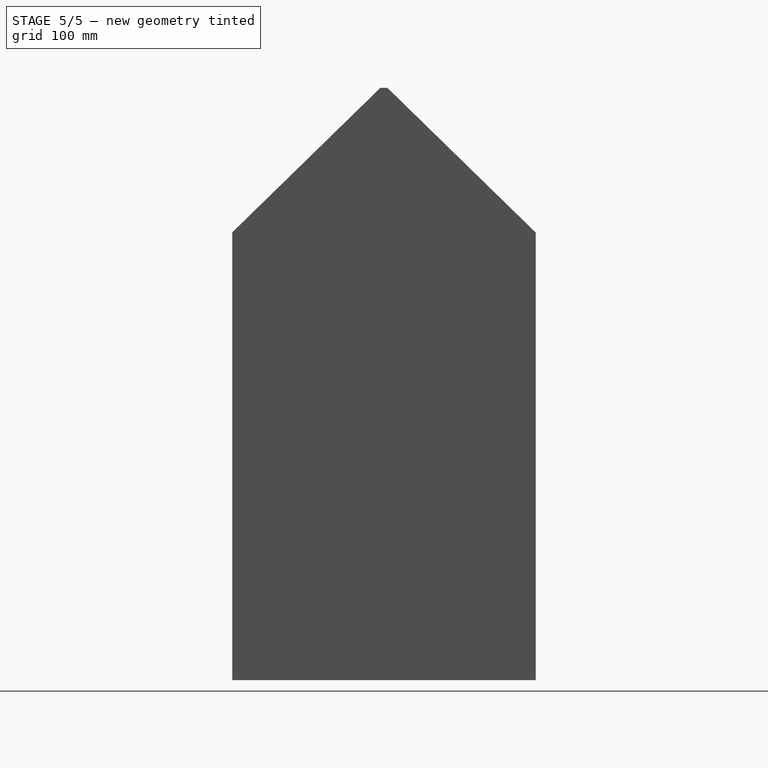
[diagram: stage 5 of 5 — right view after this stage's code; geometry added in this stage tinted green]
FEATURE [Sketcher::SketchObject] Sketch014
  FullyConstrained = false
  MapMode = 5
  Placement = pos=(0,410,0) rot=(0,0.707107,0.707107;3.14159rad)
  Support = -> [Pocket002]
  sketch-geometry (4):
    g0: LineSegment StartX=-410.017 StartY=800.004 StartZ=0 EndX=-0.0169743 EndY=800.004 EndZ=0
    g1: LineSegment StartX=-0.0169743 StartY=800.004 StartZ=0 EndX=-0.0169743 EndY=600.004 EndZ=0
    g2: LineSegment StartX=-0.0169743 StartY=600.004 StartZ=0 EndX=-410.017 EndY=600.004 EndZ=0
    g3: LineSegment StartX=-410.017 StartY=600.004 StartZ=0 EndX=-410.017 EndY=800.004 EndZ=0
  constraints (10):
    c: Coincident(g0,g1)
    c: Coincident(g1,g2)
    c: Coincident(g2,g3)
    c: Coincident(g3,g0)
    c: Horizontal(g0)
    c: Horizontal(g2)
    c: Vertical(g1)
    c: Vertical(g3)
    c: DistanceY(g2,g0) = 200
    c: DistanceX(g0,g0) = 410
FEATURE [PartDesign::Pocket] Pocket003
  BaseFeature = -> Pocket002
  Direction = (0,-1,2e-16)
  Length = 0.01
  Length2 = 5
  Profile = -> Sketch014
  ReferenceAxis = -> Sketch014 [N_Axis]
  Type = 0
FEATURE [PartDesign::Pocket] Pocket004
  BaseFeature = -> Pocket003
  Direction = (0,1,0)
  Length = 5
  Length2 = 5
  Profile = -> Pocket003 [Face45]
  Type = 0
FEATURE [Sketcher::SketchObject] Sketch015
  FullyConstrained = false
  MapMode = 5
  Placement = pos=(410,0,0) rot=(0.57735,0.57735,0.57735;2.0944rad)
  Support = -> [Pocket004]
  sketch-geometry (4):
    g0: LineSegment StartX=70 StartY=150.031 StartZ=0 EndX=150 EndY=150.031 EndZ=0
    g1: LineSegment StartX=150 StartY=150.031 StartZ=0 EndX=150 EndY=10.0311 EndZ=0
    g2: LineSegment StartX=150 StartY=10.0311 StartZ=0 EndX=70 EndY=10.0311 EndZ=0
    g3: LineSegment StartX=70 StartY=10.0311 StartZ=0 EndX=70 EndY=150.031 EndZ=0
  constraints (11):
    c: Coincident(g0,g1)
    c: Coincident(g1,g2)
    c: Coincident(g2,g3)
    c: Coincident(g3,g0)
    c: Horizontal(g0)
    c: Horizontal(g2)
    c: Vertical(g1)
    c: Vertical(g3)
    c: DistanceY(g2,g0) = 140
    c: DistanceX(g0,g0) = 80
    c: DistanceX(g-1,g2) = 70
FEATURE [PartDesign::Pocket] Pocket005
  BaseFeature = -> Pocket004
  Direction = (-1,0,0)
  Length = 70
  Length2 = 5
  Profile = -> Sketch015
  ReferenceAxis = -> Sketch015 [N_Axis]
  Type = 0
FEATURE [PartDesign::Body] Body
  Group = -> [Sketch,Pad,Sketch001,Pad001,Sketch002,Pad002,Sketch003,Pad003,Sketch004,Pad004,Sketch005,Pad005,Sketch006,Pad006,Sketch007,Pad007,Sketch008,Pad008,Sketch009,Pad009,Sketch010,Pad010,Sketch011,Pocket,Sketch012,Pocket001,Sketch013,Pocket002,Sketch014,Pocket003,Pocket004,Sketch015,Pocket005]
  Origin = -> Origin
  Tip = -> Pocket005
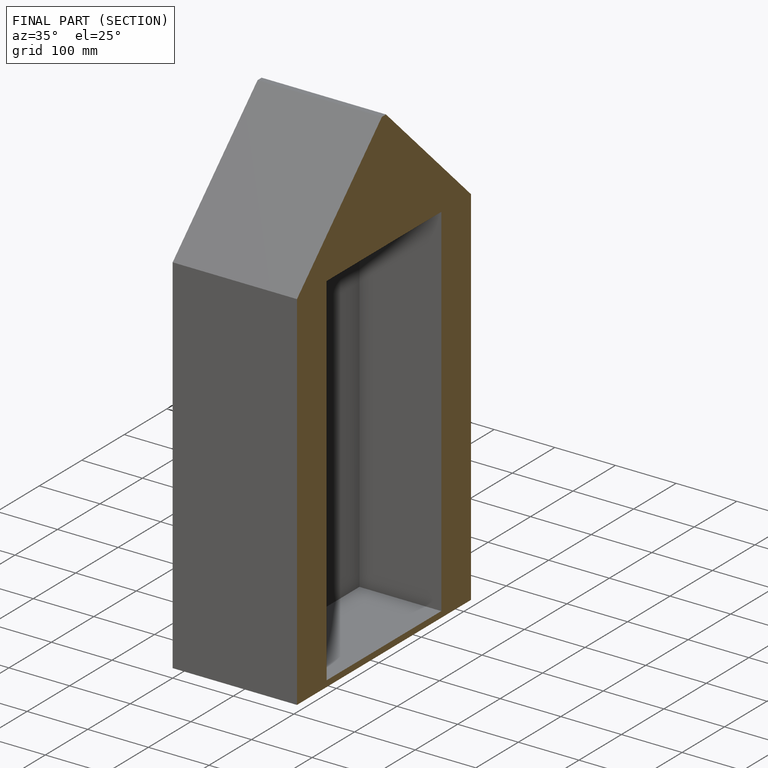
[diagram: finished part — half-section view (interior)]
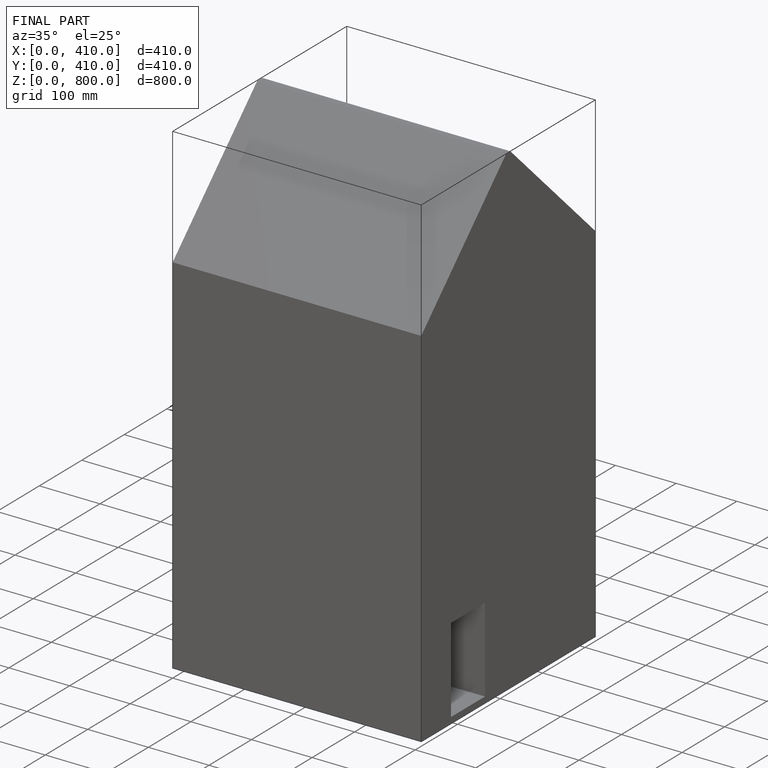
[diagram: finished part — iso view with bounding-box wireframe]
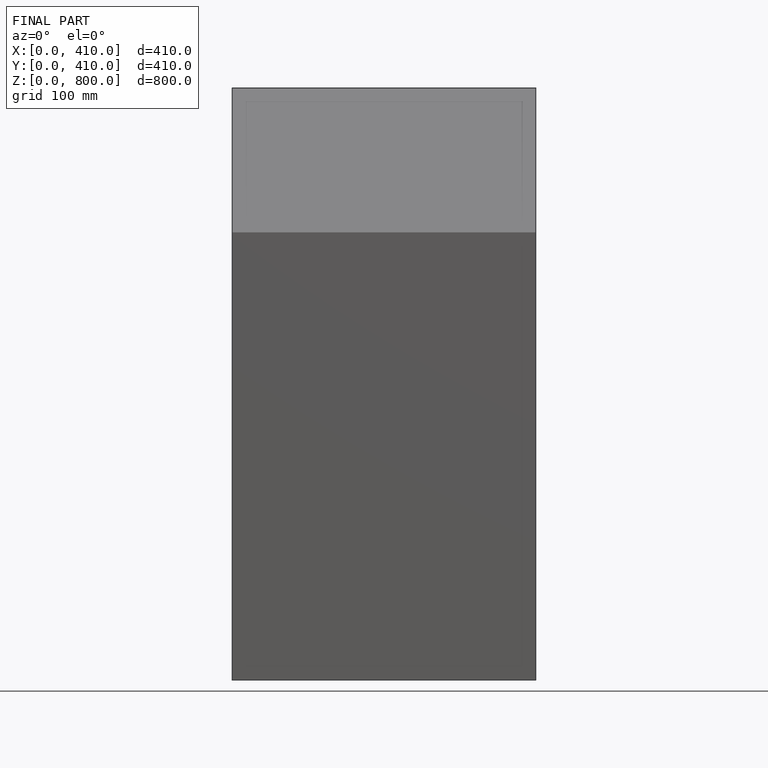
[diagram: finished part — front view with bounding-box wireframe]
